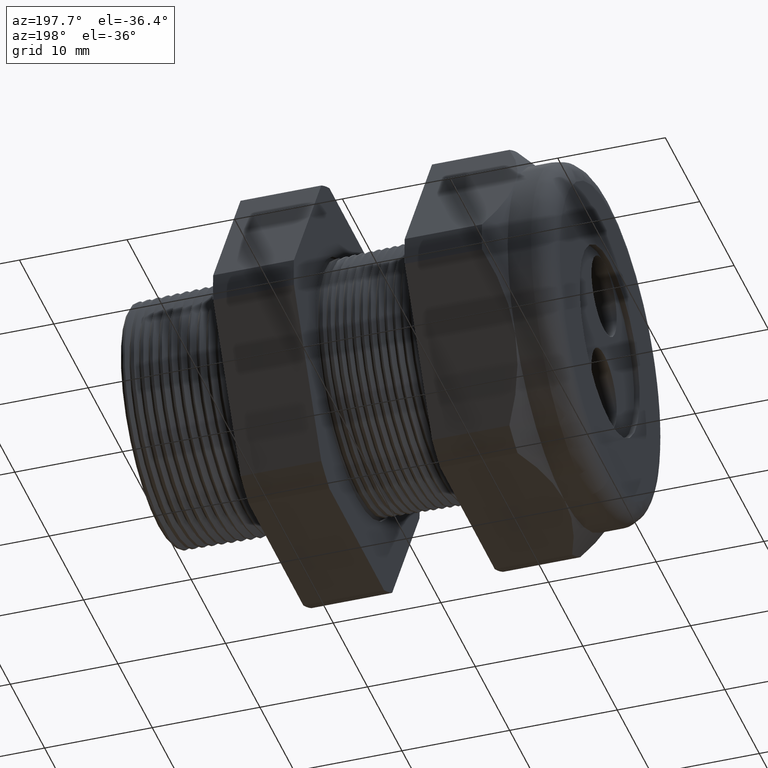
[diagram: clean part render]
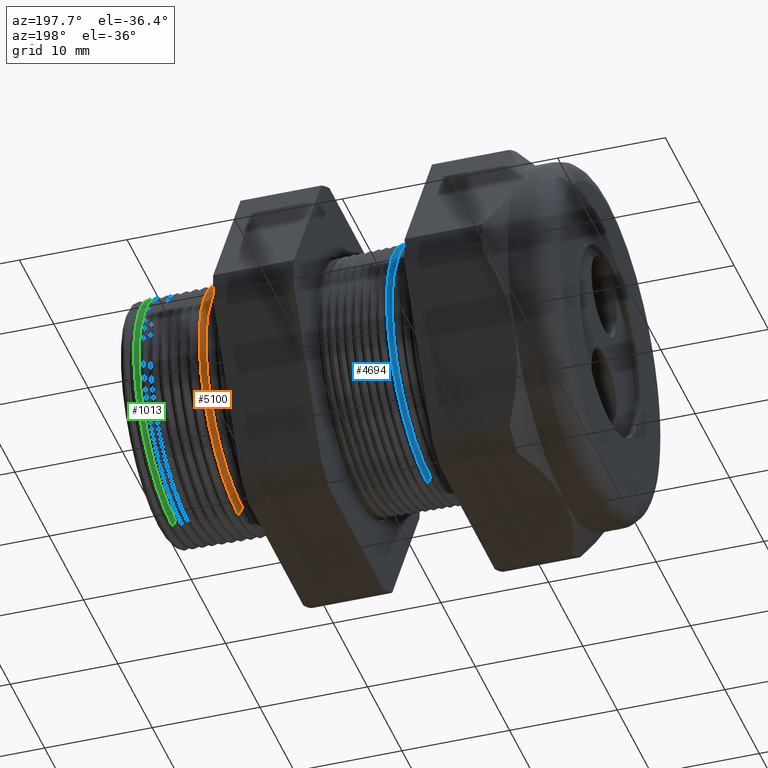
[diagram: same view with three faces highlighted in distinct colors, each labeled with its STEP entity id]
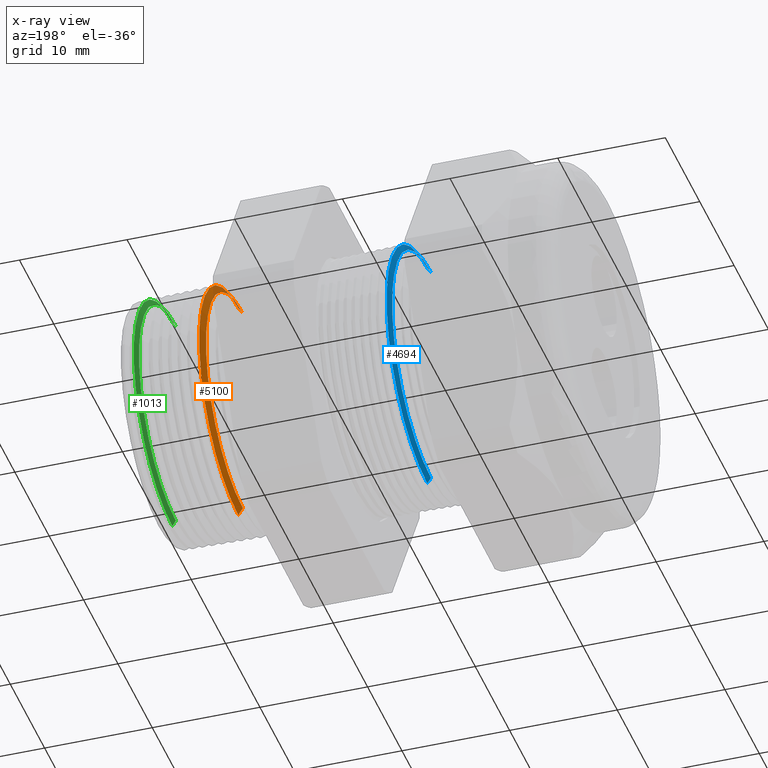
[diagram: x-ray of the same camera — body ghosted, the three highlighted faces saturated]
A machine part, auxiliary view with three faces highlighted in distinct colors.
The next image is the same camera in x-ray (body ghosted, the three faces saturated) — at least one of them is partly hidden behind the body in this view.
Their STEP definitions:

[orange] entity #5100 — the highlighted conical surface has half-angle 58.5 deg.
#3645 = DIRECTION ( 'NONE',  ( 0.0000000000000000000, 0.0000000000000000000, -1.000000000000000000 ) ) ;
#3646 = DIRECTION ( 'NONE',  ( 1.000000000000000000, 0.0000000000000000000, 0.0000000000000000000 ) ) ;
#3647 = CARTESIAN_POINT ( 'NONE',  ( -0.1884707356790752100, 0.0000000000000000000, 0.0000000000000000000 ) ) ;
#3648 = AXIS2_PLACEMENT_3D ( 'NONE', #3647, #3646, #3645 ) ;
#3650 = CONICAL_SURFACE ( 'NONE', #3648, 0.4212184895733915900, 1.021017612416699400 ) ;
#3651 = FACE_OUTER_BOUND ( 'NONE', #5091, .T. ) ;
#3739 = DIRECTION ( 'NONE',  ( 0.0000000000000000000, 0.0000000000000000000, -1.000000000000000000 ) ) ;
#3740 = DIRECTION ( 'NONE',  ( 1.000000000000000000, 0.0000000000000000000, 0.0000000000000000000 ) ) ;
#3741 = CARTESIAN_POINT ( 'NONE',  ( -0.1884707356790752100, 0.0000000000000000000, 0.0000000000000000000 ) ) ;
#3742 = AXIS2_PLACEMENT_3D ( 'NONE', #3741, #3740, #3739 ) ;
#3743 = CIRCLE ( 'NONE', #3742, 0.4212184895733915900 ) ;
#3744 = CARTESIAN_POINT ( 'NONE',  ( -0.1884707356790752100, 0.0000000000000000000, 0.4212184895733915900 ) ) ;
#3745 = DIRECTION ( 'NONE',  ( 0.5224985647159347000, 0.0000000000000000000, -0.8526401643541008400 ) ) ;
#3746 = VECTOR ( 'NONE', #3745, 39.37007874015748100 ) ;
#3747 = CARTESIAN_POINT ( 'NONE',  ( -0.1884707356790752100, 0.0000000000000000000, -0.4212184895733915900 ) ) ;
#3748 = LINE ( 'NONE', #3747, #3746 ) ;
#3755 = DIRECTION ( 'NONE',  ( 0.0000000000000000000, 0.0000000000000000000, -1.000000000000000000 ) ) ;
#3756 = DIRECTION ( 'NONE',  ( -1.000000000000000000, 0.0000000000000000000, 0.0000000000000000000 ) ) ;
#3757 = CARTESIAN_POINT ( 'NONE',  ( -0.1720291532523846000, 0.0000000000000000000, 0.0000000000000000000 ) ) ;
#3758 = AXIS2_PLACEMENT_3D ( 'NONE', #3757, #3756, #3755 ) ;
#3763 = CIRCLE ( 'NONE', #3758, 0.4480487135954552300 ) ;
#3766 = CARTESIAN_POINT ( 'NONE',  ( -0.1720291532523846000, 0.0000000000000000000, 0.4480487135954552300 ) ) ;
#3767 = CARTESIAN_POINT ( 'NONE',  ( -0.1720291532523846000, 5.487014229667634400E-017, -0.4480487135954552300 ) ) ;
#3768 = DIRECTION ( 'NONE',  ( 0.5224985647159347000, 1.044183048100722800E-016, 0.8526401643541008400 ) ) ;
#3769 = VECTOR ( 'NONE', #3768, 39.37007874015748100 ) ;
#3770 = CARTESIAN_POINT ( 'NONE',  ( -0.1884707356790752100, 5.158438749977368000E-017, 0.4212184895733915900 ) ) ;
#3771 = LINE ( 'NONE', #3770, #3769 ) ;
#3801 = CARTESIAN_POINT ( 'NONE',  ( -0.1884707356790752100, 5.327770295935951800E-017, -0.4212184895733915900 ) ) ;
#5091 = EDGE_LOOP ( 'NONE', ( #5097, #5156, #5169, #5167 ) ) ;
#5097 = ORIENTED_EDGE ( 'NONE', *, *, #5164, .T. ) ;
#5100 = ADVANCED_FACE ( 'NONE', ( #3651 ), #3650, .T. ) ;
#5153 = EDGE_CURVE ( 'NONE', #5163, #5155, #3771, .T. ) ;
#5154 = VERTEX_POINT ( 'NONE', #3767 ) ;
#5155 = VERTEX_POINT ( 'NONE', #3766 ) ;
#5156 = ORIENTED_EDGE ( 'NONE', *, *, #5153, .T. ) ;
#5159 = EDGE_CURVE ( 'NONE', #5155, #5154, #3763, .T. ) ;
#5162 = EDGE_CURVE ( 'NONE', #5168, #5154, #3748, .T. ) ;
#5163 = VERTEX_POINT ( 'NONE', #3744 ) ;
#5164 = EDGE_CURVE ( 'NONE', #5168, #5163, #3743, .T. ) ;
#5167 = ORIENTED_EDGE ( 'NONE', *, *, #5162, .F. ) ;
#5168 = VERTEX_POINT ( 'NONE', #3801 ) ;
#5169 = ORIENTED_EDGE ( 'NONE', *, *, #5159, .T. ) ;

[blue] entity #4694 — the highlighted conical surface has half-angle 58.5 deg.
#3018 = DIRECTION ( 'NONE',  ( 0.0000000000000000000, 0.0000000000000000000, -1.000000000000000000 ) ) ;
#3019 = DIRECTION ( 'NONE',  ( 1.000000000000000000, 0.0000000000000000000, 0.0000000000000000000 ) ) ;
#3020 = CARTESIAN_POINT ( 'NONE',  ( -0.8765405736958171700, 0.0000000000000000000, 0.0000000000000000000 ) ) ;
#3021 = AXIS2_PLACEMENT_3D ( 'NONE', #3020, #3019, #3018 ) ;
#3022 = CIRCLE ( 'NONE', #3021, 0.4446307351718083400 ) ;
#3023 = CARTESIAN_POINT ( 'NONE',  ( -0.8765405736958171700, 5.580979396460794700E-017, -0.4446307351718083400 ) ) ;
#3024 = CARTESIAN_POINT ( 'NONE',  ( -0.8765405736958171700, 0.0000000000000000000, 0.4446307351718083400 ) ) ;
#3025 = DIRECTION ( 'NONE',  ( 0.0000000000000000000, 0.0000000000000000000, -1.000000000000000000 ) ) ;
#3026 = DIRECTION ( 'NONE',  ( 1.000000000000000000, 0.0000000000000000000, 0.0000000000000000000 ) ) ;
#3027 = CARTESIAN_POINT ( 'NONE',  ( -0.8765405736958171700, 0.0000000000000000000, 0.0000000000000000000 ) ) ;
#3028 = AXIS2_PLACEMENT_3D ( 'NONE', #3027, #3026, #3025 ) ;
#3029 = CONICAL_SURFACE ( 'NONE', #3028, 0.4446307351718083400, 1.021017612416699200 ) ;
#3030 = FACE_OUTER_BOUND ( 'NONE', #4696, .T. ) ;
#3035 = CARTESIAN_POINT ( 'NONE',  ( -0.8633525379665555300, 0.0000000000000000000, 0.4661516535265203800 ) ) ;
#3303 = DIRECTION ( 'NONE',  ( 0.5224985647159348100, 0.0000000000000000000, -0.8526401643541007300 ) ) ;
#3304 = VECTOR ( 'NONE', #3303, 39.37007874015748900 ) ;
#3305 = CARTESIAN_POINT ( 'NONE',  ( -0.8765405736958171700, 0.0000000000000000000, -0.4446307351718083400 ) ) ;
#3306 = LINE ( 'NONE', #3305, #3304 ) ;
#3308 = DIRECTION ( 'NONE',  ( 0.0000000000000000000, 0.0000000000000000000, -1.000000000000000000 ) ) ;
#3309 = DIRECTION ( 'NONE',  ( -1.000000000000000000, 0.0000000000000000000, 0.0000000000000000000 ) ) ;
#3310 = CARTESIAN_POINT ( 'NONE',  ( -0.8633525379665555300, 0.0000000000000000000, 0.0000000000000000000 ) ) ;
#3311 = AXIS2_PLACEMENT_3D ( 'NONE', #3310, #3309, #3308 ) ;
#3312 = CIRCLE ( 'NONE', #3311, 0.4661516535265203300 ) ;
#3313 = DIRECTION ( 'NONE',  ( 0.5224985647159348100, 1.044183048100722500E-016, 0.8526401643541007300 ) ) ;
#3314 = VECTOR ( 'NONE', #3313, 39.37007874015748900 ) ;
#3315 = CARTESIAN_POINT ( 'NONE',  ( -0.8765405736958171700, 5.445156066306895900E-017, 0.4446307351718083400 ) ) ;
#3316 = LINE ( 'NONE', #3315, #3314 ) ;
#3344 = CARTESIAN_POINT ( 'NONE',  ( -0.8633525379665555300, 5.708711304084992300E-017, -0.4661516535265203800 ) ) ;
#4690 = VERTEX_POINT ( 'NONE', #3035 ) ;
#4694 = ADVANCED_FACE ( 'NONE', ( #3030 ), #3029, .T. ) ;
#4695 = VERTEX_POINT ( 'NONE', #3024 ) ;
#4696 = EDGE_LOOP ( 'NONE', ( #4699, #4875, #4888, #4889 ) ) ;
#4697 = VERTEX_POINT ( 'NONE', #3023 ) ;
#4699 = ORIENTED_EDGE ( 'NONE', *, *, #4700, .T. ) ;
#4700 = EDGE_CURVE ( 'NONE', #4697, #4695, #3022, .T. ) ;
#4875 = ORIENTED_EDGE ( 'NONE', *, *, #4876, .T. ) ;
#4876 = EDGE_CURVE ( 'NONE', #4695, #4690, #3316, .T. ) ;
#4877 = EDGE_CURVE ( 'NONE', #4690, #4886, #3312, .T. ) ;
#4879 = EDGE_CURVE ( 'NONE', #4697, #4886, #3306, .T. ) ;
#4886 = VERTEX_POINT ( 'NONE', #3344 ) ;
#4888 = ORIENTED_EDGE ( 'NONE', *, *, #4877, .T. ) ;
#4889 = ORIENTED_EDGE ( 'NONE', *, *, #4879, .F. ) ;

[green] entity #1013 — the highlighted conical surface has half-angle 58.5 deg.
#41 = EDGE_LOOP ( 'NONE', ( #1004, #1001, #998, #992 ) ) ;
#992 = ORIENTED_EDGE ( 'NONE', *, *, #993, .F. ) ;
#993 = EDGE_CURVE ( 'NONE', #995, #996, #2941, .T. ) ;
#995 = VERTEX_POINT ( 'NONE', #2931 ) ;
#996 = VERTEX_POINT ( 'NONE', #2930 ) ;
#997 = EDGE_CURVE ( 'NONE', #1000, #1002, #2929, .T. ) ;
#998 = ORIENTED_EDGE ( 'NONE', *, *, #1003, .T. ) ;
#999 = EDGE_CURVE ( 'NONE', #995, #1000, #2925, .T. ) ;
#1000 = VERTEX_POINT ( 'NONE', #2920 ) ;
#1001 = ORIENTED_EDGE ( 'NONE', *, *, #997, .T. ) ;
#1002 = VERTEX_POINT ( 'NONE', #2919 ) ;
#1003 = EDGE_CURVE ( 'NONE', #1002, #996, #2918, .T. ) ;
#1004 = ORIENTED_EDGE ( 'NONE', *, *, #999, .T. ) ;
#1013 = ADVANCED_FACE ( 'NONE', ( #2964 ), #2963, .T. ) ;
#2914 = DIRECTION ( 'NONE',  ( 0.0000000000000000000, 0.0000000000000000000, -1.000000000000000000 ) ) ;
#2915 = DIRECTION ( 'NONE',  ( -1.000000000000000000, 0.0000000000000000000, 0.0000000000000000000 ) ) ;
#2916 = CARTESIAN_POINT ( 'NONE',  ( 0.06910148289796844100, 0.0000000000000000000, 0.0000000000000000000 ) ) ;
#2917 = AXIS2_PLACEMENT_3D ( 'NONE', #2916, #2915, #2914 ) ;
#2918 = CIRCLE ( 'NONE', #2917, 0.4417344856692956300 ) ;
#2919 = CARTESIAN_POINT ( 'NONE',  ( 0.06910148289796844100, 0.0000000000000000000, 0.4417344856692956300 ) ) ;
#2920 = CARTESIAN_POINT ( 'NONE',  ( 0.05652926432092481000, 0.0000000000000000000, 0.4212184895733915900 ) ) ;
#2921 = DIRECTION ( 'NONE',  ( 0.0000000000000000000, 0.0000000000000000000, -1.000000000000000000 ) ) ;
#2922 = DIRECTION ( 'NONE',  ( 1.000000000000000000, 0.0000000000000000000, 0.0000000000000000000 ) ) ;
#2923 = CARTESIAN_POINT ( 'NONE',  ( 0.05652926432092481000, 0.0000000000000000000, 0.0000000000000000000 ) ) ;
#2924 = AXIS2_PLACEMENT_3D ( 'NONE', #2923, #2922, #2921 ) ;
#2925 = CIRCLE ( 'NONE', #2924, 0.4212184895733915900 ) ;
#2926 = DIRECTION ( 'NONE',  ( 0.5224985647159347000, 1.044183048100722800E-016, 0.8526401643541008400 ) ) ;
#2927 = VECTOR ( 'NONE', #2926, 39.37007874015748100 ) ;
#2928 = CARTESIAN_POINT ( 'NONE',  ( 0.05652926432092481000, 5.158438749977368000E-017, 0.4212184895733915900 ) ) ;
#2929 = LINE ( 'NONE', #2928, #2927 ) ;
#2930 = CARTESIAN_POINT ( 'NONE',  ( 0.06910148289796844100, 5.409687239479051700E-017, -0.4417344856692956300 ) ) ;
#2931 = CARTESIAN_POINT ( 'NONE',  ( 0.05652926432092481000, 5.287919790946048300E-017, -0.4212184895733915900 ) ) ;
#2938 = DIRECTION ( 'NONE',  ( 0.5224985647159347000, 0.0000000000000000000, -0.8526401643541008400 ) ) ;
#2939 = VECTOR ( 'NONE', #2938, 39.37007874015748100 ) ;
#2940 = CARTESIAN_POINT ( 'NONE',  ( 0.05652926432092481000, 0.0000000000000000000, -0.4212184895733915900 ) ) ;
#2941 = LINE ( 'NONE', #2940, #2939 ) ;
#2958 = DIRECTION ( 'NONE',  ( 0.0000000000000000000, 0.0000000000000000000, -1.000000000000000000 ) ) ;
#2959 = DIRECTION ( 'NONE',  ( 1.000000000000000000, 0.0000000000000000000, 0.0000000000000000000 ) ) ;
#2960 = CARTESIAN_POINT ( 'NONE',  ( 0.05652926432092481000, 0.0000000000000000000, 0.0000000000000000000 ) ) ;
#2961 = AXIS2_PLACEMENT_3D ( 'NONE', #2960, #2959, #2958 ) ;
#2963 = CONICAL_SURFACE ( 'NONE', #2961, 0.4212184895733915900, 1.021017612416699400 ) ;
#2964 = FACE_OUTER_BOUND ( 'NONE', #41, .T. ) ;